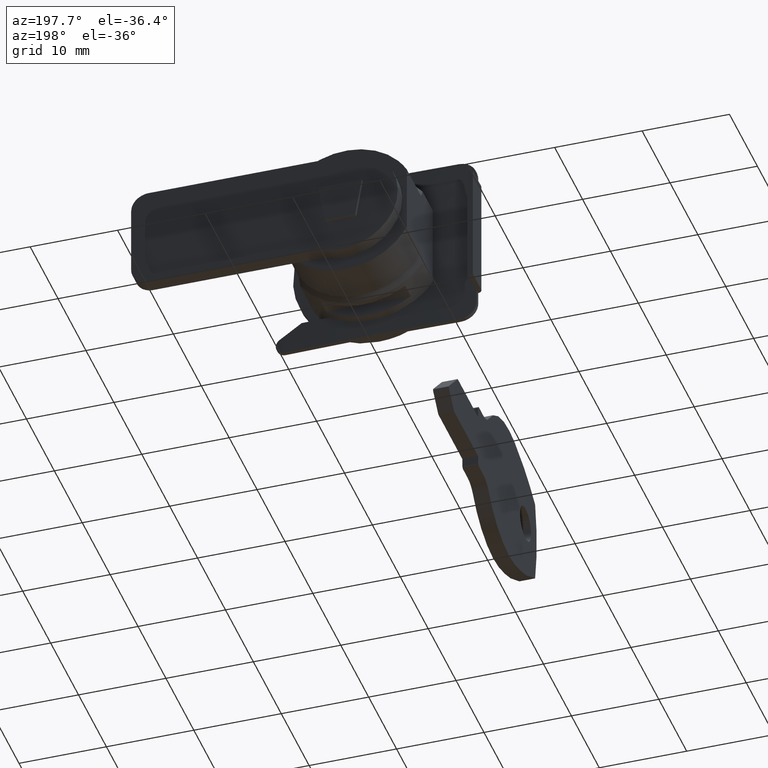
[diagram: clean part render]
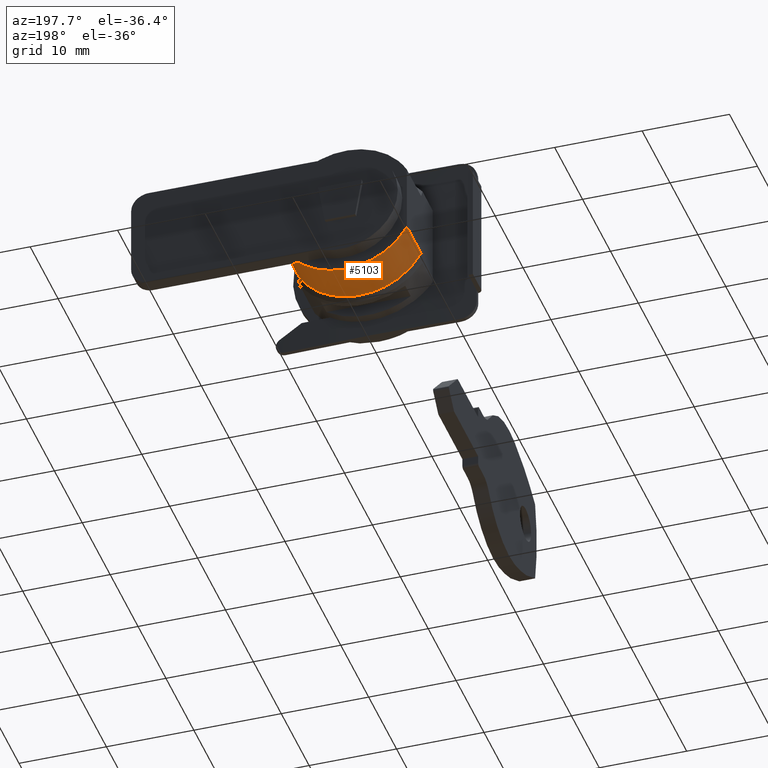
[diagram: same view with one face highlighted and labeled with its STEP entity id]
A machine part, auxiliary view. The second image highlights one B-rep face of the part: STEP entity #5103.
In plain terms, the highlighted face is a freeform B-spline surface patch.
Its self-contained STEP definition (entity closure, byte-faithful):
#4716=CARTESIAN_POINT('',(5.799999999999770,-7.0,-3.872983346207300));
#4717=VERTEX_POINT('',#4716);
#4725=CARTESIAN_POINT('',(10.900000000000000,-7.0,-3.872983346207415));
#4726=VERTEX_POINT('',#4725);
#4727=CARTESIAN_POINT('',(5.799999999999770,-7.0,-3.872983346207300));
#4728=CARTESIAN_POINT('',(10.900000000000000,-7.0,-3.872983346207415));
#4729=QUASI_UNIFORM_CURVE('',1,(#4727,#4728),.UNSPECIFIED.,.F.,.U.);
#4730=EDGE_CURVE('',#4717,#4726,#4729,.T.);
#4800=CARTESIAN_POINT('',(10.900000000000000,7.0,-3.872983346207450));
#4801=VERTEX_POINT('',#4800);
#4807=CARTESIAN_POINT('',(5.799999999999770,7.0,-3.872983346207300));
#4808=VERTEX_POINT('',#4807);
#4809=CARTESIAN_POINT('',(10.900000000000000,7.0,-3.872983346207450));
#4810=CARTESIAN_POINT('',(5.799999999999770,7.0,-3.872983346207300));
#4811=QUASI_UNIFORM_CURVE('',1,(#4809,#4810),.UNSPECIFIED.,.F.,.U.);
#4812=EDGE_CURVE('',#4801,#4808,#4811,.T.);
#4880=CARTESIAN_POINT('',(10.900000000000000,6.999999999999986,-3.872983346207444));
#4881=CARTESIAN_POINT('',(10.900000000000000,4.716590461477217,-8.0));
#4882=CARTESIAN_POINT('',(10.900000000000000,0.0,-8.0));
#4883=CARTESIAN_POINT('',(10.900000000000000,-4.716590461477234,-8.0));
#4884=CARTESIAN_POINT('',(10.900000000000000,-6.999999999999998,-3.872983346207421));
#4892=(BOUNDED_CURVE()B_SPLINE_CURVE(2,(#4880,#4881,#4882,#4883,#4884),.UNSPECIFIED.,.F.,.U.)B_SPLINE_CURVE_WITH_KNOTS((3,2,3),(0.0,0.500000000000000,1.0),.UNSPECIFIED.)CURVE()GEOMETRIC_REPRESENTATION_ITEM()RATIONAL_B_SPLINE_CURVE((1.0,0.861429892178096,1.0,0.861429892178096,1.0))REPRESENTATION_ITEM(''));
#4893=EDGE_CURVE('',#4801,#4726,#4892,.T.);
#5069=CARTESIAN_POINT('',(11.027500000000011,-7.156670662180244,-3.575201397556304));
#5070=CARTESIAN_POINT('',(5.669312499999763,-7.156670662180244,-3.575201397556304));
#5071=CARTESIAN_POINT('',(11.027500000000009,0.338894943317527,-18.579473465132427));
#5072=CARTESIAN_POINT('',(5.669312499999763,0.338894943317527,-18.579473465132427));
#5073=CARTESIAN_POINT('',(11.027500000000011,7.282292107244372,-3.311830560998899));
#5074=CARTESIAN_POINT('',(5.669312499999763,7.282292107244372,-3.311830560998899));
#5082=(BOUNDED_SURFACE()B_SPLINE_SURFACE(1,2,((#5069,#5071,#5073),(#5070,#5072,#5074)),.UNSPECIFIED.,.F.,.F.,.U.)B_SPLINE_SURFACE_WITH_KNOTS((2,2),(3,3),(0.0,5.358187500000246),(0.0,20.190496364297800),.UNSPECIFIED.)GEOMETRIC_REPRESENTATION_ITEM()RATIONAL_B_SPLINE_SURFACE(((1.0,0.430511096808295,1.0),(1.0,0.430511096808295,1.0)))REPRESENTATION_ITEM('')SURFACE());
#5083=ORIENTED_EDGE('',*,*,#4730,.F.);
#5084=CARTESIAN_POINT('',(5.799999999999770,7.0,-3.872983346207300));
#5085=CARTESIAN_POINT('',(5.799999999999770,4.716590461477240,-7.999999999999889));
#5086=CARTESIAN_POINT('',(5.799999999999770,0.0,-7.999999999999889));
#5087=CARTESIAN_POINT('',(5.799999999999770,-4.716590461477237,-7.999999999999889));
#5088=CARTESIAN_POINT('',(5.799999999999770,-7.0,-3.872983346207300));
#5096=(BOUNDED_CURVE()B_SPLINE_CURVE(2,(#5084,#5085,#5086,#5087,#5088),.UNSPECIFIED.,.F.,.U.)B_SPLINE_CURVE_WITH_KNOTS((3,2,3),(0.0,0.500000000000000,1.0),.UNSPECIFIED.)CURVE()GEOMETRIC_REPRESENTATION_ITEM()RATIONAL_B_SPLINE_CURVE((1.0,0.861429892178091,1.0,0.861429892178091,1.0))REPRESENTATION_ITEM(''));
#5097=EDGE_CURVE('',#4808,#4717,#5096,.T.);
#5098=ORIENTED_EDGE('',*,*,#5097,.F.);
#5099=ORIENTED_EDGE('',*,*,#4812,.F.);
#5100=ORIENTED_EDGE('',*,*,#4893,.T.);
#5101=EDGE_LOOP('',(#5083,#5098,#5099,#5100));
#5102=FACE_OUTER_BOUND('',#5101,.T.);
#5103=ADVANCED_FACE('',(#5102),#5082,.T.);